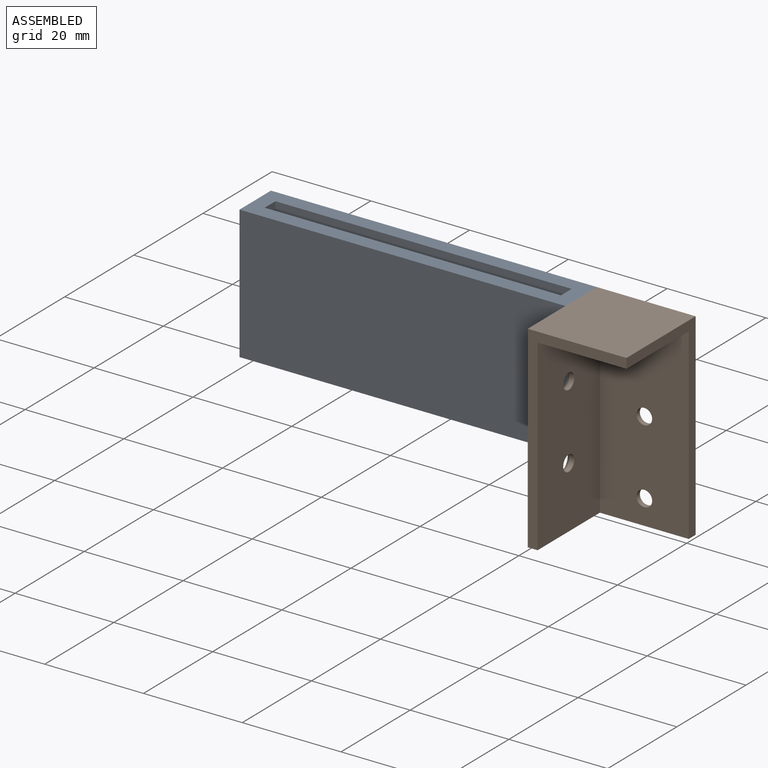
[diagram: assembled view]
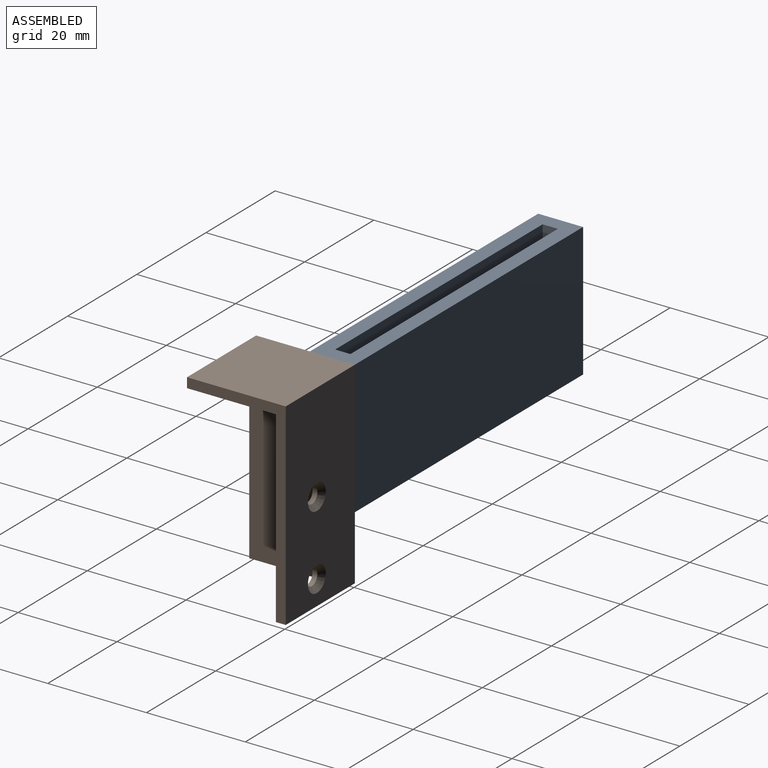
[diagram: assembled view, second angle]
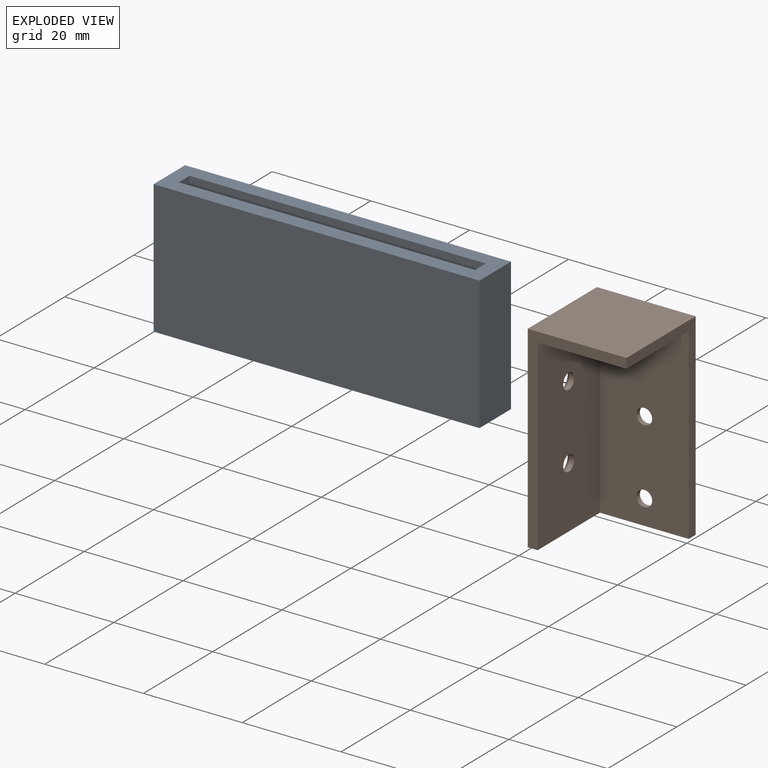
[diagram: exploded view]
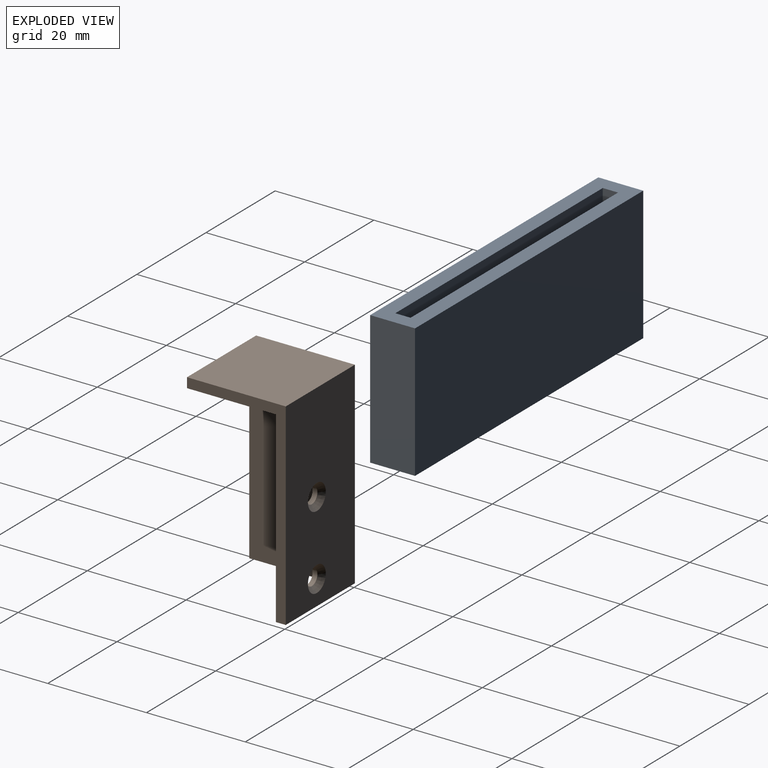
[diagram: exploded view, second angle]
ASSEMBLY  parts=2 mates=3
PART A: 11 faces, bbox 66x9.1x27 mm
  f0: plane 66x9.1mm, normal (0,0,1), area 414.6mm2, adj f1,f2,f3,f4,f6,f7,f8,f9
  f1: plane 27x9.1mm, normal (1,0,0), area 245.7mm2, adj f0,f2,f4,f5
  f2: plane 66x27mm, normal (0,1,0), area 1782mm2, adj f0,f1,f3,f5
  f3: plane 27x9.1mm, normal (-1,0,0), area 245.7mm2, adj f0,f2,f4,f5
  f4: plane 66x27mm, normal (0,-1,0), area 1782mm2, adj f0,f1,f3,f5
  f5: plane 66x9.1mm, normal (0,0,-1), area 600.6mm2, adj f1,f2,f3,f4
  f6: plane 24x3.1mm, normal (-1,0,0), area 74.4mm2, adj f0,f7,f9,f10
  f7: plane 60x24mm, normal (0,-1,0), area 1440mm2, adj f0,f6,f8,f10
  f8: plane 24x3.1mm, normal (1,0,0), area 74.4mm2, adj f0,f7,f9,f10
  f9: plane 60x24mm, normal (0,1,0), area 1440mm2, adj f0,f6,f8,f10
  f10: plane 60x3.1mm, normal (0,0,1), area 186mm2, adj f6,f7,f8,f9
PART B: 17 faces, bbox 20x40x20 mm
  f0: plane 38x18mm, normal (0,0,1), area 668.2mm2, adj f1,f2,f6,f8,f9,f10
  f1: plane 40x20mm, normal (1,0,0), area 116mm2, adj f0,f3,f5,f6,f7,f8
  f2: plane 38x18mm, normal (1,0,0), area 668.2mm2, adj f0,f3,f6,f8,f11,f12
  f3: plane 40x20mm, normal (0,0,1), area 116mm2, adj f1,f2,f4,f6,f7,f8
  f4: plane 40x20mm, normal (-1,0,0), area 757.9mm2, adj f3,f5,f6,f7,f15,f16
  f5: plane 40x20mm, normal (0,0,-1), area 757.9mm2, adj f1,f4,f6,f7,f13,f14
  f6: plane 20x20mm, normal (0,1,0), area 76mm2, adj f0,f1,f2,f3,f4,f5
  f7: plane 20x20mm, normal (0,-1,0), area 400mm2, adj f1,f3,f4,f5
  f8: plane 18x18mm, normal (0,1,0), area 324mm2, adj f0,f1,f2,f3
  f9: cylinder r=1.59mm len=3.18mm, axis (0,0,1), area 10mm2, adj f0,f14
  f10: cylinder r=1.59mm len=3.18mm, axis (0,0,1), area 10mm2, adj f0,f13
  f11: cylinder r=1.59mm len=3.18mm, axis (1,0,0), area 10mm2, adj f2,f16
  f12: cylinder r=1.59mm len=3.18mm, axis (1,0,0), area 10mm2, adj f2,f15
  f13: cone r=1.59mm half-angle=45deg, axis (0,0,-1), area 18.5mm2, adj f5,f10
  f14: cone r=1.59mm half-angle=45deg, axis (0,0,-1), area 18.5mm2, adj f5,f9
  f15: cone r=2.59mm half-angle=45deg, axis (-1,0,0), area 18.5mm2, adj f4,f12
  f16: cone r=2.59mm half-angle=45deg, axis (-1,0,0), area 18.5mm2, adj f4,f11
PLACE A t=(-11.88,-23.57,-62.91)mm
PLACE B rot(axis=(-0.58,0.58,-0.58),120deg) t=(23.12,-21.02,-38.91)mm
MATE planar A.f2 <-> B.f4  axis (0,1,0) through (-11.88,-19.02,-52.41)mm
MATE planar B.f5 <-> A.f1  axis (-1,0,0) through (21.12,-19.02,-38.91)mm
MATE planar A.f0 <-> B.f7  axis (0,0,1) through (-11.88,-23.57,-38.91)mm
